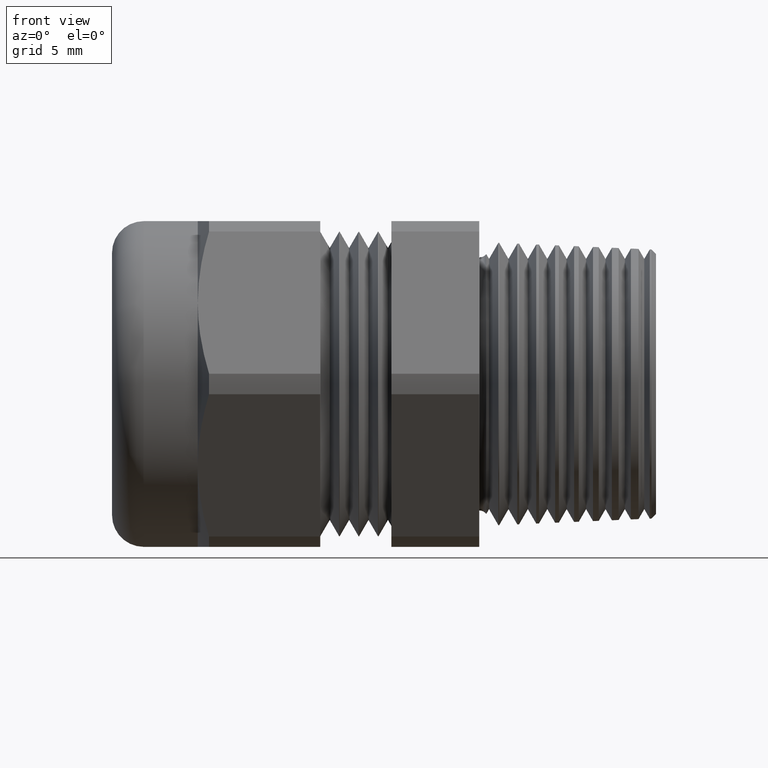
[diagram: clean part render]
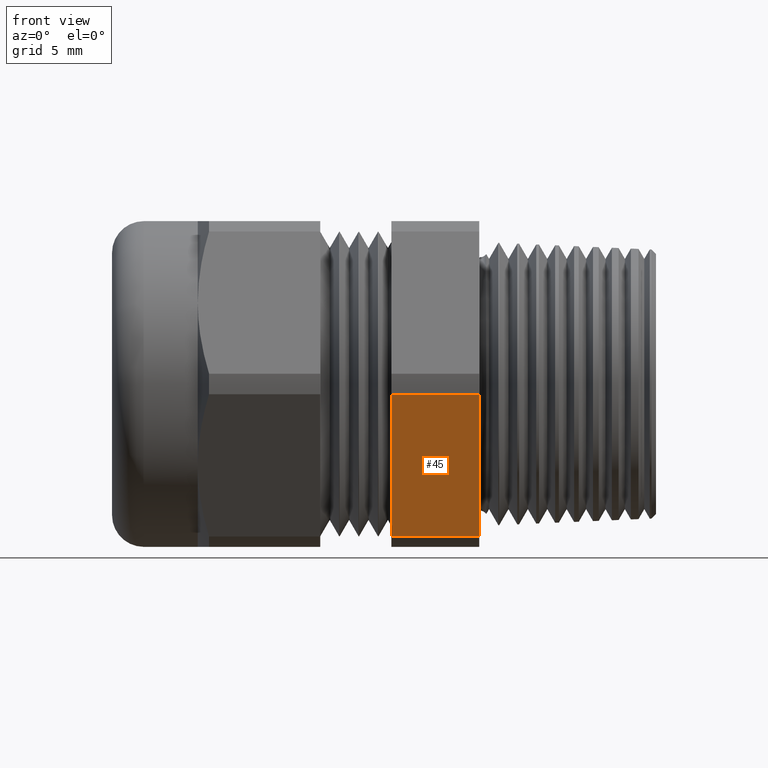
[diagram: same view with one face highlighted and labeled with its STEP entity id]
A machine part, front view. The second image highlights one B-rep face of the part: STEP entity #45.
In plain terms, the highlighted planar face has unit normal (0, -0.866, -0.5).
Its self-contained STEP definition (entity closure, byte-faithful):
#45 = ADVANCED_FACE ( 'NONE', ( #977 ), #976, .T. ) ;
#46 = EDGE_LOOP ( 'NONE', ( #47, #48, #49, #50 ) ) ;
#47 = ORIENTED_EDGE ( 'NONE', *, *, #3739, .T. ) ;
#48 = ORIENTED_EDGE ( 'NONE', *, *, #716, .T. ) ;
#49 = ORIENTED_EDGE ( 'NONE', *, *, #517, .F. ) ;
#50 = ORIENTED_EDGE ( 'NONE', *, *, #734, .F. ) ;
#517 = EDGE_CURVE ( 'NONE', #518, #519, #1768, .T. ) ;
#518 = VERTEX_POINT ( 'NONE', #1764 ) ;
#519 = VERTEX_POINT ( 'NONE', #1763 ) ;
#716 = EDGE_CURVE ( 'NONE', #3724, #519, #2160, .T. ) ;
#734 = EDGE_CURVE ( 'NONE', #3723, #518, #2192, .T. ) ;
#976 = PLANE ( 'NONE',  #1042 ) ;
#977 = FACE_OUTER_BOUND ( 'NONE', #46, .T. ) ;
#1039 = DIRECTION ( 'NONE',  ( 0.0000000000000000000, 0.5000000000000001100, -0.8660254037844386000 ) ) ;
#1040 = DIRECTION ( 'NONE',  ( 0.0000000000000000000, -0.8660254037844386000, -0.5000000000000001100 ) ) ;
#1041 = CARTESIAN_POINT ( 'NONE',  ( -2.316272878851058700, -0.5255614297801198800, -0.02970090112228954500 ) ) ;
#1042 = AXIS2_PLACEMENT_3D ( 'NONE', #1041, #1040, #1039 ) ;
#1763 = CARTESIAN_POINT ( 'NONE',  ( 0.0000000000000000000, -0.2885024497772523700, -0.4402990988777105200 ) ) ;
#1764 = CARTESIAN_POINT ( 'NONE',  ( 0.0000000000000000000, -0.5255614297801198800, -0.02970090112228954500 ) ) ;
#1765 = DIRECTION ( 'NONE',  ( 0.0000000000000000000, 0.5000000000000002200, -0.8660254037844386000 ) ) ;
#1766 = VECTOR ( 'NONE', #1765, 39.37007874015747400 ) ;
#1767 = CARTESIAN_POINT ( 'NONE',  ( 0.0000000000000000000, -0.5255614297801198800, -0.02970090112228954500 ) ) ;
#1768 = LINE ( 'NONE', #1767, #1766 ) ;
#2157 = DIRECTION ( 'NONE',  ( 1.000000000000000000, 0.0000000000000000000, 0.0000000000000000000 ) ) ;
#2158 = VECTOR ( 'NONE', #2157, 39.37007874015748100 ) ;
#2159 = CARTESIAN_POINT ( 'NONE',  ( -2.316272878851058700, -0.2885024497772523700, -0.4402990988777104600 ) ) ;
#2160 = LINE ( 'NONE', #2159, #2158 ) ;
#2185 = DIRECTION ( 'NONE',  ( 1.000000000000000000, 0.0000000000000000000, 0.0000000000000000000 ) ) ;
#2186 = VECTOR ( 'NONE', #2185, 39.37007874015748100 ) ;
#2187 = CARTESIAN_POINT ( 'NONE',  ( -2.316272878851058700, -0.5255614297801198800, -0.02970090112228954500 ) ) ;
#2192 = LINE ( 'NONE', #2187, #2186 ) ;
#3174 = CARTESIAN_POINT ( 'NONE',  ( -0.2537313432835821600, -0.2885024497772523700, -0.4402990988777104600 ) ) ;
#3175 = CARTESIAN_POINT ( 'NONE',  ( -0.2537313432835821600, -0.5255614297801198800, -0.02970090112228954500 ) ) ;
#3209 = DIRECTION ( 'NONE',  ( 0.0000000000000000000, 0.5000000000000002200, -0.8660254037844386000 ) ) ;
#3210 = VECTOR ( 'NONE', #3209, 39.37007874015747400 ) ;
#3211 = CARTESIAN_POINT ( 'NONE',  ( -0.2537313432835821000, -0.2970569397786860200, -0.4254822875623873700 ) ) ;
#3212 = LINE ( 'NONE', #3211, #3210 ) ;
#3723 = VERTEX_POINT ( 'NONE', #3175 ) ;
#3724 = VERTEX_POINT ( 'NONE', #3174 ) ;
#3739 = EDGE_CURVE ( 'NONE', #3723, #3724, #3212, .T. ) ;